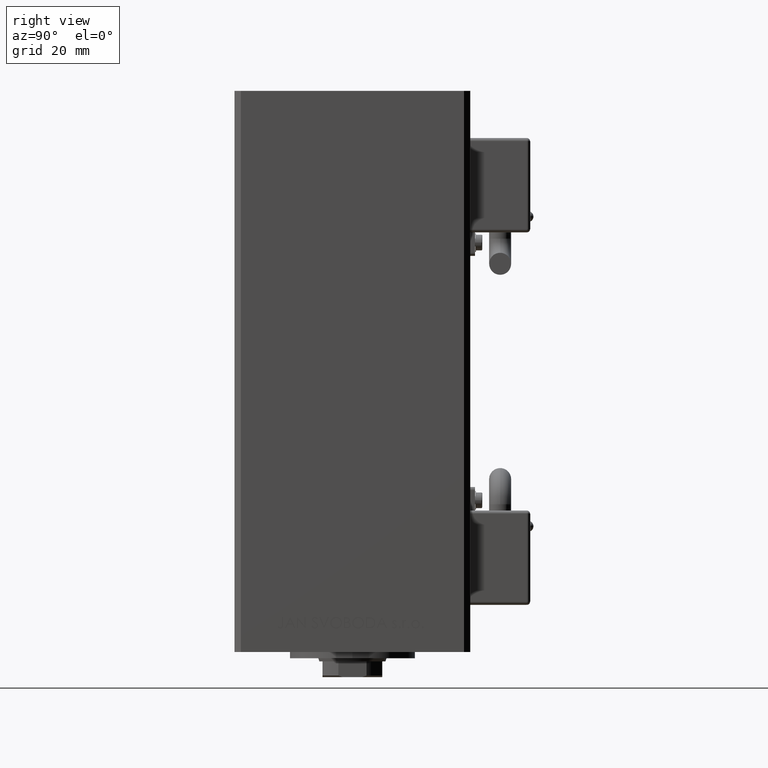
[diagram: clean part render]
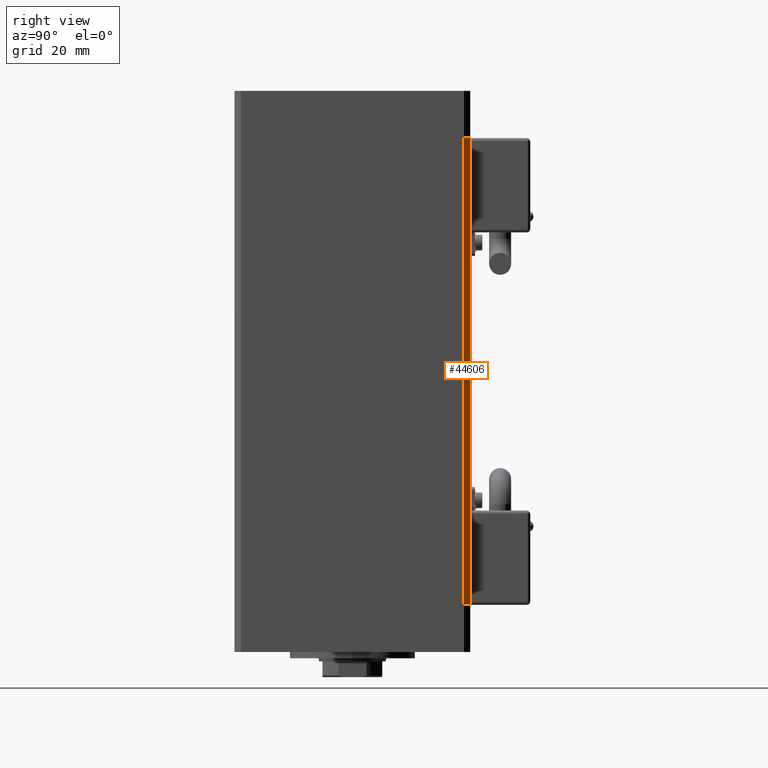
[diagram: same view with one face highlighted and labeled with its STEP entity id]
A machine part, right view. The second image highlights one B-rep face of the part: STEP entity #44606.
In plain terms, the highlighted planar face has unit normal (0.7071, 0.7071, 0).
Its self-contained STEP definition (entity closure, byte-faithful):
#2689 = VECTOR ( 'NONE', #22398, 1000.000000000000000 ) ;
#3386 = VECTOR ( 'NONE', #13716, 1000.000000000000000 ) ;
#6436 = LINE ( 'NONE', #10891, #2689 ) ;
#6706 = CARTESIAN_POINT ( 'NONE',  ( 42.50000000000000711, 35.50000000000001421, 148.5000000000000000 ) ) ;
#10220 = DIRECTION ( 'NONE',  ( 0.7071067811865500152, -0.7071067811865451302, 0.000000000000000000 ) ) ;
#10891 = CARTESIAN_POINT ( 'NONE',  ( 40.50000000000000000, 37.50000000000000711, 148.5000000000000000 ) ) ;
#11504 = VECTOR ( 'NONE', #45049, 1000.000000000000114 ) ;
#12950 = CARTESIAN_POINT ( 'NONE',  ( 40.50000000000000000, 37.50000000000000711, 148.5000000000000000 ) ) ;
#13295 = CARTESIAN_POINT ( 'NONE',  ( 42.50000000000000711, 35.50000000000001421, 0.000000000000000000 ) ) ;
#13716 = DIRECTION ( 'NONE',  ( -0.000000000000000000, -0.000000000000000000, -1.000000000000000000 ) ) ;
#13913 = DIRECTION ( 'NONE',  ( -0.7071067811865500152, 0.7071067811865451302, 0.000000000000000000 ) ) ;
#16125 = ORIENTED_EDGE ( 'NONE', *, *, #20419, .F. ) ;
#17658 = LINE ( 'NONE', #45874, #3386 ) ;
#19496 = VERTEX_POINT ( 'NONE', #13295 ) ;
#20419 = EDGE_CURVE ( 'NONE', #33149, #19496, #34018, .T. ) ;
#20886 = AXIS2_PLACEMENT_3D ( 'NONE', #22789, #50247, #13913 ) ;
#22147 = EDGE_CURVE ( 'NONE', #47872, #33149, #6436, .T. ) ;
#22398 = DIRECTION ( 'NONE',  ( -0.000000000000000000, -0.000000000000000000, -1.000000000000000000 ) ) ;
#22789 = CARTESIAN_POINT ( 'NONE',  ( 40.50000000000000000, 37.50000000000000711, 148.5000000000000000 ) ) ;
#26320 = ORIENTED_EDGE ( 'NONE', *, *, #22147, .F. ) ;
#33149 = VERTEX_POINT ( 'NONE', #45484 ) ;
#33508 = VERTEX_POINT ( 'NONE', #6706 ) ;
#34018 = LINE ( 'NONE', #49947, #39386 ) ;
#34493 = EDGE_LOOP ( 'NONE', ( #16125, #26320, #44039, #37835 ) ) ;
#34734 = EDGE_CURVE ( 'NONE', #47872, #33508, #36965, .T. ) ;
#36425 = CARTESIAN_POINT ( 'NONE',  ( 40.50000000000000000, 37.50000000000000711, 148.5000000000000000 ) ) ;
#36965 = LINE ( 'NONE', #36425, #11504 ) ;
#37835 = ORIENTED_EDGE ( 'NONE', *, *, #42653, .T. ) ;
#38743 = FACE_OUTER_BOUND ( 'NONE', #34493, .T. ) ;
#39386 = VECTOR ( 'NONE', #10220, 1000.000000000000114 ) ;
#41900 = PLANE ( 'NONE',  #20886 ) ;
#42653 = EDGE_CURVE ( 'NONE', #33508, #19496, #17658, .T. ) ;
#44039 = ORIENTED_EDGE ( 'NONE', *, *, #34734, .T. ) ;
#44606 = ADVANCED_FACE ( 'NONE', ( #38743 ), #41900, .T. ) ;
#45049 = DIRECTION ( 'NONE',  ( 0.7071067811865500152, -0.7071067811865451302, 0.000000000000000000 ) ) ;
#45484 = CARTESIAN_POINT ( 'NONE',  ( 40.50000000000000000, 37.50000000000000711, 0.000000000000000000 ) ) ;
#45874 = CARTESIAN_POINT ( 'NONE',  ( 42.50000000000000711, 35.50000000000001421, 148.5000000000000000 ) ) ;
#47872 = VERTEX_POINT ( 'NONE', #12950 ) ;
#49947 = CARTESIAN_POINT ( 'NONE',  ( 40.50000000000000000, 37.50000000000000711, 0.000000000000000000 ) ) ;
#50247 = DIRECTION ( 'NONE',  ( 0.7071067811865451302, 0.7071067811865500152, -0.000000000000000000 ) ) ;